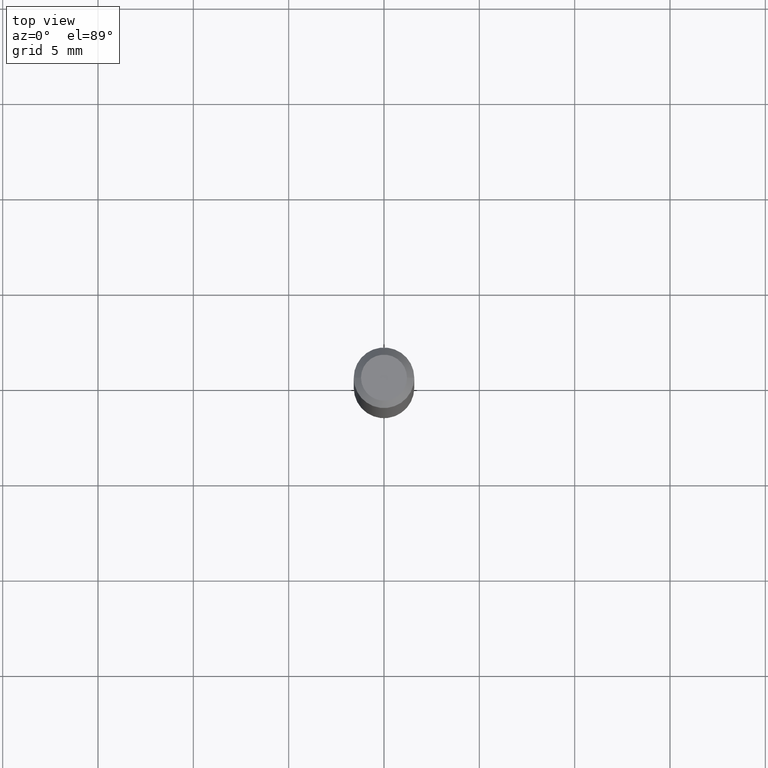
[diagram: clean part render]
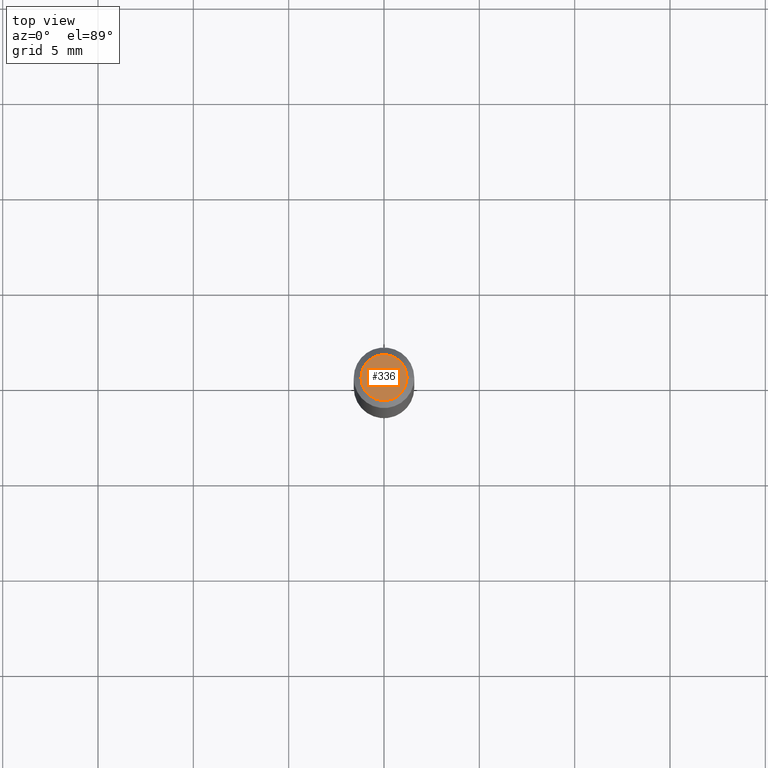
[diagram: same view with one face highlighted and labeled with its STEP entity id]
A machine part, top view. The second image highlights one B-rep face of the part: STEP entity #336.
In plain terms, the highlighted planar face has unit normal (0, -0, -1).
Its self-contained STEP definition (entity closure, byte-faithful):
#1 = DIRECTION ( 'NONE',  ( 1.000000000000000000, -6.982962677686267499E-15, 4.852736867747366768E-29 ) ) ;
#10 = ORIENTED_EDGE ( 'NONE', *, *, #293, .T. ) ;
#33 = CARTESIAN_POINT ( 'NONE',  ( 1.278896122067429216E-44, -1.825924719719875646E-30, -5.229656247639779395E-16 ) ) ;
#62 = CARTESIAN_POINT ( 'NONE',  ( -0.04749999999999999362, 3.578768372314202124E-16, -5.229656247639803061E-16 ) ) ;
#66 = DIRECTION ( 'NONE',  ( -2.445468806185136597E-29, 3.491481338843145583E-15, 1.000000000000000000 ) ) ;
#67 = EDGE_LOOP ( 'NONE', ( #423, #10 ) ) ;
#68 = DIRECTION ( 'NONE',  ( -1.000000000000000000, 6.982962677686265922E-15, -4.876176775795935793E-29 ) ) ;
#108 = AXIS2_PLACEMENT_3D ( 'NONE', #463, #66, #1 ) ;
#111 = DIRECTION ( 'NONE',  ( 1.000000000000000000, -6.982962677686267499E-15, 4.852736867747366768E-29 ) ) ;
#112 = DIRECTION ( 'NONE',  ( 2.438088387897960049E-29, -3.491481338843145188E-15, -1.000000000000000000 ) ) ;
#144 = CARTESIAN_POINT ( 'NONE',  ( 0.04749999999999999362, -4.035134999187587991E-16, -5.229656247639753758E-16 ) ) ;
#174 = VERTEX_POINT ( 'NONE', #62 ) ;
#175 = CIRCLE ( 'NONE', #108, 0.04749999999999999362 ) ;
#181 = AXIS2_PLACEMENT_3D ( 'NONE', #322, #112, #68 ) ;
#281 = CIRCLE ( 'NONE', #409, 0.04749999999999999362 ) ;
#293 = EDGE_CURVE ( 'NONE', #375, #174, #175, .T. ) ;
#322 = CARTESIAN_POINT ( 'NONE',  ( 3.316907271900976096E-16, 0.04749999999999999362, -4.273281759770383169E-16 ) ) ;
#336 = ADVANCED_FACE ( 'NONE', ( #391 ), #357, .F. ) ;
#357 = PLANE ( 'NONE',  #181 ) ;
#375 = VERTEX_POINT ( 'NONE', #144 ) ;
#391 = FACE_OUTER_BOUND ( 'NONE', #67, .T. ) ;
#400 = EDGE_CURVE ( 'NONE', #174, #375, #281, .T. ) ;
#409 = AXIS2_PLACEMENT_3D ( 'NONE', #33, #431, #111 ) ;
#423 = ORIENTED_EDGE ( 'NONE', *, *, #400, .T. ) ;
#431 = DIRECTION ( 'NONE',  ( -2.445468806185136597E-29, 3.491481338843145583E-15, 1.000000000000000000 ) ) ;
#463 = CARTESIAN_POINT ( 'NONE',  ( 1.278896122067429216E-44, -1.825924719719875646E-30, -5.229656247639779395E-16 ) ) ;